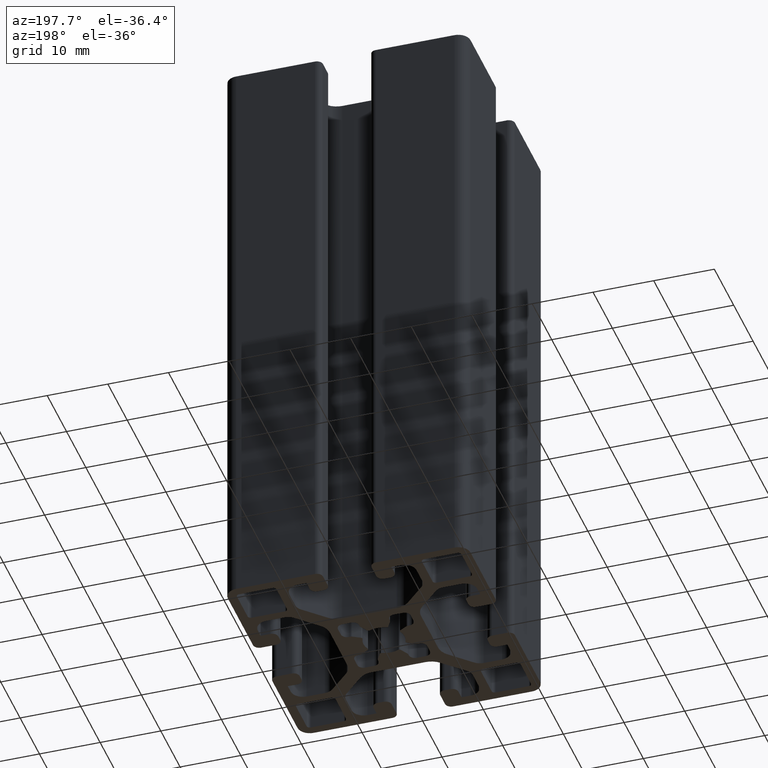
[diagram: clean part render]
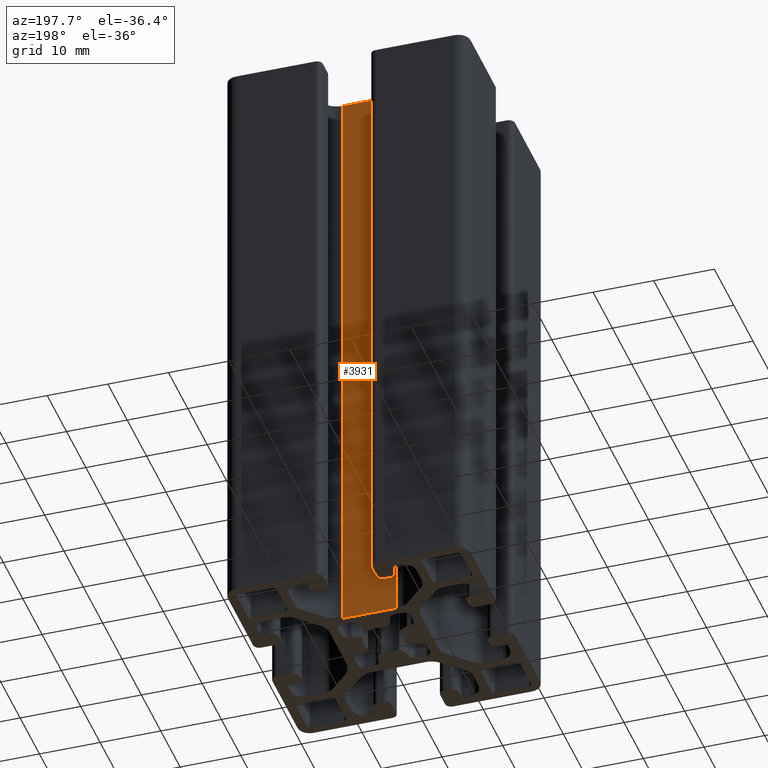
[diagram: same view with one face highlighted and labeled with its STEP entity id]
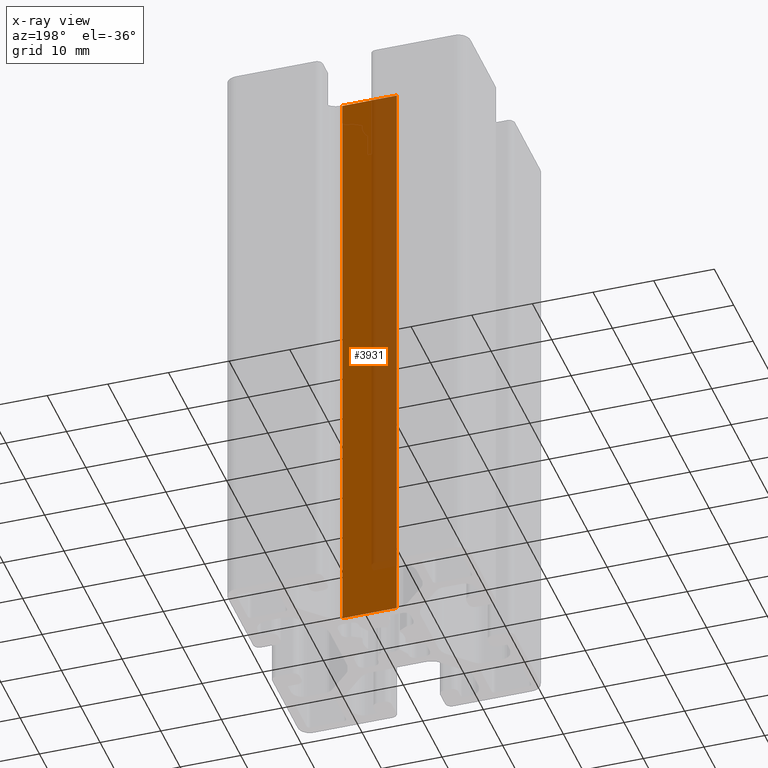
[diagram: x-ray of the same camera — body ghosted, the highlighted face saturated]
A machine part, auxiliary view. The second image highlights one B-rep face of the part: STEP entity #3931.
The next image is the same camera in x-ray: the body ghosted, the highlighted face saturated — about 43% of this face is hidden behind the body in this view.
In plain terms, the highlighted planar face has unit normal (0, -1, 0).
Its self-contained STEP definition (entity closure, byte-faithful):
#66=PLANE('',#4233);
#217=FACE_OUTER_BOUND('',#419,.T.);
#419=EDGE_LOOP('',(#2901,#2902,#2903,#2904));
#713=LINE('',#6195,#1113);
#714=LINE('',#6199,#1114);
#715=LINE('',#6201,#1115);
#716=LINE('',#6202,#1116);
#1113=VECTOR('',#4995,100.);
#1114=VECTOR('',#5000,8.97918471982869);
#1115=VECTOR('',#5001,100.);
#1116=VECTOR('',#5002,8.97918471982869);
#1721=VERTEX_POINT('',#6192);
#1722=VERTEX_POINT('',#6194);
#1723=VERTEX_POINT('',#6198);
#1724=VERTEX_POINT('',#6200);
#2210=EDGE_CURVE('',#1722,#1721,#713,.T.);
#2212=EDGE_CURVE('',#1723,#1721,#714,.T.);
#2213=EDGE_CURVE('',#1724,#1723,#715,.T.);
#2214=EDGE_CURVE('',#1722,#1724,#716,.T.);
#2901=ORIENTED_EDGE('',*,*,#2212,.F.);
#2902=ORIENTED_EDGE('',*,*,#2213,.F.);
#2903=ORIENTED_EDGE('',*,*,#2214,.F.);
#2904=ORIENTED_EDGE('',*,*,#2210,.T.);
#3931=ADVANCED_FACE('',(#217),#66,.F.);
#4233=AXIS2_PLACEMENT_3D('',#6197,#4998,#4999);
#4995=DIRECTION('',(0.,0.,1.));
#4998=DIRECTION('center_axis',(0.,-1.,0.));
#4999=DIRECTION('ref_axis',(1.,0.,0.));
#5000=DIRECTION('',(-1.,0.,0.));
#5001=DIRECTION('',(0.,0.,1.));
#5002=DIRECTION('',(1.,0.,0.));
#6192=CARTESIAN_POINT('',(-4.48958535991434,7.49999399999998,100.));
#6194=CARTESIAN_POINT('',(-4.48958535991434,7.49999399999998,0.));
#6195=CARTESIAN_POINT('',(-4.48958535991434,7.49999399999998,0.));
#6197=CARTESIAN_POINT('Origin',(-4.48958535991434,7.49999399999998,0.));
#6198=CARTESIAN_POINT('',(4.48959935991435,7.49999399999998,100.));
#6199=CARTESIAN_POINT('',(-2.24479267995717,7.49999399999998,100.));
#6200=CARTESIAN_POINT('',(4.48959935991435,7.49999399999998,0.));
#6201=CARTESIAN_POINT('',(4.48959935991435,7.49999399999998,0.));
#6202=CARTESIAN_POINT('',(-2.24479267995717,7.49999399999998,0.));